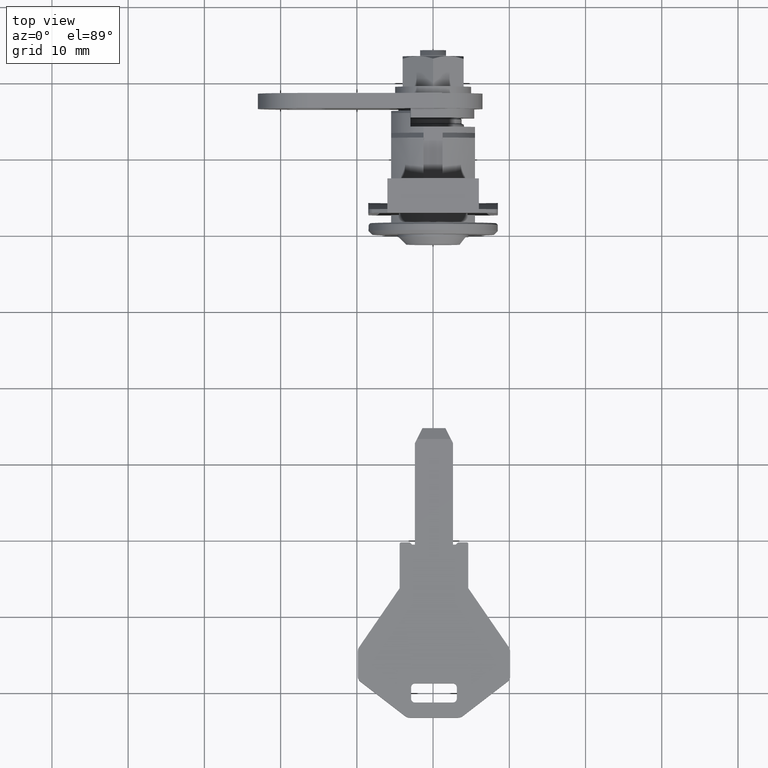
[diagram: clean part render]
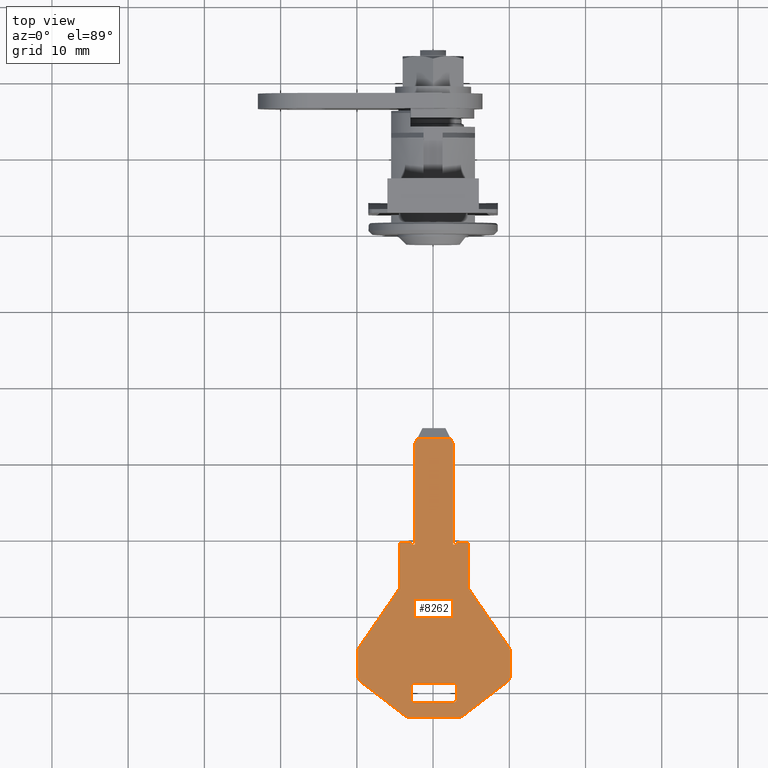
[diagram: same view with one face highlighted and labeled with its STEP entity id]
A machine part, top view. The second image highlights one B-rep face of the part: STEP entity #8262.
In plain terms, the highlighted face is a freeform B-spline surface patch.
Its self-contained STEP definition (entity closure, byte-faithful):
#6846=CARTESIAN_POINT('',(-26.804951253183500,-2.344554118247190,0.900000000000000));
#6847=VERTEX_POINT('',#6846);
#6862=CARTESIAN_POINT('',(-26.804951253596450,2.114778545015325,0.900000000150315));
#6863=VERTEX_POINT('',#6862);
#6869=CARTESIAN_POINT('',(-26.804951253596450,2.114778545015325,0.900000000150315));
#6870=CARTESIAN_POINT('',(-26.804951253183500,-2.344554118247190,0.900000000000000));
#6871=QUASI_UNIFORM_CURVE('',1,(#6869,#6870),.UNSPECIFIED.,.F.,.U.);
#6872=EDGE_CURVE('',#6863,#6847,#6871,.T.);
#6929=CARTESIAN_POINT('',(-58.872900445619287,2.385112213383990,0.900000000143564));
#6930=VERTEX_POINT('',#6929);
#6936=CARTESIAN_POINT('',(-59.372900445619301,2.885112213383990,0.900000000150295));
#6937=VERTEX_POINT('',#6936);
#6938=CARTESIAN_POINT('',(-58.872900445619287,2.385112213383990,0.900000000143564));
#6939=CARTESIAN_POINT('',(-58.872900445619294,2.885112213383990,0.900000000150295));
#6940=CARTESIAN_POINT('',(-59.372900445619301,2.885112213383990,0.900000000150295));
#6948=(BOUNDED_CURVE()B_SPLINE_CURVE(2,(#6938,#6939,#6940),.UNSPECIFIED.,.F.,.U.)CURVE()GEOMETRIC_REPRESENTATION_ITEM()QUASI_UNIFORM_CURVE()RATIONAL_B_SPLINE_CURVE((1.0,0.707106781186548,1.0))REPRESENTATION_ITEM(''));
#6949=EDGE_CURVE('',#6930,#6937,#6948,.T.);
#6981=CARTESIAN_POINT('',(-58.872900445619997,-2.614887786616010,0.900000000150295));
#6982=VERTEX_POINT('',#6981);
#6988=CARTESIAN_POINT('',(-58.872900445619997,-2.614887786616010,0.900000000150295));
#6989=CARTESIAN_POINT('',(-58.872900445619287,2.385112213383990,0.900000000143564));
#6990=QUASI_UNIFORM_CURVE('',1,(#6988,#6989),.UNSPECIFIED.,.F.,.U.);
#6991=EDGE_CURVE('',#6982,#6930,#6990,.T.);
#7018=CARTESIAN_POINT('',(-59.372900445619997,-3.114887786616010,0.900000000150295));
#7019=VERTEX_POINT('',#7018);
#7025=CARTESIAN_POINT('',(-59.372900445619997,-3.114887786616010,0.900000000150295));
#7026=CARTESIAN_POINT('',(-58.872900445619997,-3.114887786616011,0.900000000150295));
#7027=CARTESIAN_POINT('',(-58.872900445619997,-2.614887786616010,0.900000000150295));
#7035=(BOUNDED_CURVE()B_SPLINE_CURVE(2,(#7025,#7026,#7027),.UNSPECIFIED.,.F.,.U.)CURVE()GEOMETRIC_REPRESENTATION_ITEM()QUASI_UNIFORM_CURVE()RATIONAL_B_SPLINE_CURVE((1.0,0.707106781186548,1.0))REPRESENTATION_ITEM(''));
#7036=EDGE_CURVE('',#7019,#6982,#7035,.T.);
#7062=CARTESIAN_POINT('',(-60.872900445619997,-3.114887786616010,0.900000000150295));
#7063=VERTEX_POINT('',#7062);
#7069=CARTESIAN_POINT('',(-60.872900445619997,-3.114887786616010,0.900000000150295));
#7070=CARTESIAN_POINT('',(-59.372900445619997,-3.114887786616010,0.900000000150295));
#7071=QUASI_UNIFORM_CURVE('',1,(#7069,#7070),.UNSPECIFIED.,.F.,.U.);
#7072=EDGE_CURVE('',#7063,#7019,#7071,.T.);
#7099=CARTESIAN_POINT('',(-61.372900445619997,-2.614887786615895,0.900000000150295));
#7100=VERTEX_POINT('',#7099);
#7106=CARTESIAN_POINT('',(-61.372900445619997,-2.614887786615895,0.900000000150295));
#7107=CARTESIAN_POINT('',(-61.372900445620047,-2.821994567802476,0.900000000150295));
#7108=CARTESIAN_POINT('',(-61.226453836213317,-2.968441177209243,0.900000000150295));
#7109=CARTESIAN_POINT('',(-61.080007226806579,-3.114887786616011,0.900000000150295));
#7110=CARTESIAN_POINT('',(-60.872900445619997,-3.114887786616010,0.900000000150295));
#7118=(BOUNDED_CURVE()B_SPLINE_CURVE(2,(#7106,#7107,#7108,#7109,#7110),.UNSPECIFIED.,.F.,.U.)B_SPLINE_CURVE_WITH_KNOTS((3,2,3),(0.0,0.500000000000000,1.0),.UNSPECIFIED.)CURVE()GEOMETRIC_REPRESENTATION_ITEM()RATIONAL_B_SPLINE_CURVE((1.0,0.923879532511265,1.0,0.923879532511265,1.0))REPRESENTATION_ITEM(''));
#7119=EDGE_CURVE('',#7100,#7063,#7118,.T.);
#7145=CARTESIAN_POINT('',(-61.372900445619301,2.385112213383990,0.900000000150295));
#7146=VERTEX_POINT('',#7145);
#7152=CARTESIAN_POINT('',(-61.372900445619301,2.385112213383990,0.900000000150295));
#7153=CARTESIAN_POINT('',(-61.372900445619997,-2.614887786615895,0.900000000150295));
#7154=QUASI_UNIFORM_CURVE('',1,(#7152,#7153),.UNSPECIFIED.,.F.,.U.);
#7155=EDGE_CURVE('',#7146,#7100,#7154,.T.);
#7182=CARTESIAN_POINT('',(-60.872900445619301,2.885112213383990,0.900000000150295));
#7183=VERTEX_POINT('',#7182);
#7189=CARTESIAN_POINT('',(-60.872900445619301,2.885112213383990,0.900000000150295));
#7190=CARTESIAN_POINT('',(-61.372900445619294,2.885112213383990,0.900000000150295));
#7191=CARTESIAN_POINT('',(-61.372900445619301,2.385112213383990,0.900000000150295));
#7199=(BOUNDED_CURVE()B_SPLINE_CURVE(2,(#7189,#7190,#7191),.UNSPECIFIED.,.F.,.U.)CURVE()GEOMETRIC_REPRESENTATION_ITEM()QUASI_UNIFORM_CURVE()RATIONAL_B_SPLINE_CURVE((1.0,0.707106781186548,1.0))REPRESENTATION_ITEM(''));
#7200=EDGE_CURVE('',#7183,#7146,#7199,.T.);
#7225=CARTESIAN_POINT('',(-59.372900445619301,2.885112213383990,0.900000000150295));
#7226=CARTESIAN_POINT('',(-60.872900445619301,2.885112213383990,0.900000000150295));
#7227=QUASI_UNIFORM_CURVE('',1,(#7225,#7226),.UNSPECIFIED.,.F.,.U.);
#7228=EDGE_CURVE('',#6937,#7183,#7227,.T.);
#7272=CARTESIAN_POINT('',(-40.572900445619098,4.385112213384115,0.900000000150336));
#7273=VERTEX_POINT('',#7272);
#7279=CARTESIAN_POINT('',(-40.372900445619052,4.185112213384000,0.900000000150336));
#7280=VERTEX_POINT('',#7279);
#7281=CARTESIAN_POINT('',(-40.372900445619102,4.185112213384000,0.900000000150336));
#7282=CARTESIAN_POINT('',(-40.372900445619067,4.267954925858652,0.900000000150336));
#7283=CARTESIAN_POINT('',(-40.431479089381753,4.326533569621384,0.900000000150336));
#7284=CARTESIAN_POINT('',(-40.490057733144447,4.385112213384115,0.900000000150336));
#7285=CARTESIAN_POINT('',(-40.572900445619098,4.385112213384115,0.900000000150336));
#7293=(BOUNDED_CURVE()B_SPLINE_CURVE(2,(#7281,#7282,#7283,#7284,#7285),.UNSPECIFIED.,.F.,.U.)B_SPLINE_CURVE_WITH_KNOTS((3,2,3),(0.0,0.500000000000000,1.0),.UNSPECIFIED.)CURVE()GEOMETRIC_REPRESENTATION_ITEM()RATIONAL_B_SPLINE_CURVE((1.0,0.923879532511232,1.0,0.923879532511232,1.0))REPRESENTATION_ITEM(''));
#7294=EDGE_CURVE('',#7280,#7273,#7293,.T.);
#7317=CARTESIAN_POINT('',(-40.372900445620097,3.035112213384395,0.900000000150336));
#7318=VERTEX_POINT('',#7317);
#7319=CARTESIAN_POINT('',(-40.372900445620097,3.035112213384395,0.900000000150336));
#7320=CARTESIAN_POINT('',(-40.372900445619052,4.185112213384000,0.900000000150336));
#7321=QUASI_UNIFORM_CURVE('',1,(#7319,#7320),.UNSPECIFIED.,.F.,.U.);
#7322=EDGE_CURVE('',#7318,#7280,#7321,.T.);
#7345=CARTESIAN_POINT('',(-40.672900445620002,2.735112213384015,0.900000000150336));
#7346=VERTEX_POINT('',#7345);
#7347=CARTESIAN_POINT('',(-40.672900445620002,2.735112213384015,0.900000000150336));
#7348=CARTESIAN_POINT('',(-40.372900445620097,3.035112213384395,0.900000000150336));
#7349=QUASI_UNIFORM_CURVE('',1,(#7347,#7348),.UNSPECIFIED.,.F.,.U.);
#7350=EDGE_CURVE('',#7346,#7318,#7349,.T.);
#7373=CARTESIAN_POINT('',(-40.672900445620002,2.385112213383990,0.900000000150336));
#7374=VERTEX_POINT('',#7373);
#7375=CARTESIAN_POINT('',(-40.672900445620002,2.385112213383990,0.900000000150336));
#7376=CARTESIAN_POINT('',(-40.672900445620002,2.735112213384015,0.900000000150336));
#7377=QUASI_UNIFORM_CURVE('',1,(#7375,#7376),.UNSPECIFIED.,.F.,.U.);
#7378=EDGE_CURVE('',#7374,#7346,#7377,.T.);
#7401=CARTESIAN_POINT('',(-27.335510951127748,2.385112213382910,0.900000000150336));
#7402=VERTEX_POINT('',#7401);
#7403=CARTESIAN_POINT('',(-27.335510951127748,2.385112213382910,0.900000000150336));
#7404=CARTESIAN_POINT('',(-40.672900445620002,2.385112213383990,0.900000000150336));
#7405=QUASI_UNIFORM_CURVE('',1,(#7403,#7404),.UNSPECIFIED.,.F.,.U.);
#7406=EDGE_CURVE('',#7402,#7374,#7405,.T.);
#7430=CARTESIAN_POINT('',(-27.335510951130050,-2.614887786616010,0.900000000150336));
#7431=VERTEX_POINT('',#7430);
#7437=CARTESIAN_POINT('',(-40.672900445620002,-2.614887786615895,0.900000000150336));
#7438=VERTEX_POINT('',#7437);
#7439=CARTESIAN_POINT('',(-40.672900445620002,-2.614887786615895,0.900000000150336));
#7440=CARTESIAN_POINT('',(-27.335510951130050,-2.614887786616010,0.900000000150336));
#7441=QUASI_UNIFORM_CURVE('',1,(#7439,#7440),.UNSPECIFIED.,.F.,.U.);
#7442=EDGE_CURVE('',#7438,#7431,#7441,.T.);
#7465=CARTESIAN_POINT('',(-40.672900445620002,-2.964887786616005,0.900000000150336));
#7466=VERTEX_POINT('',#7465);
#7467=CARTESIAN_POINT('',(-40.672900445620002,-2.964887786616005,0.900000000150336));
#7468=CARTESIAN_POINT('',(-40.672900445620002,-2.614887786615895,0.900000000150336));
#7469=QUASI_UNIFORM_CURVE('',1,(#7467,#7468),.UNSPECIFIED.,.F.,.U.);
#7470=EDGE_CURVE('',#7466,#7438,#7469,.T.);
#7493=CARTESIAN_POINT('',(-40.372900445620047,-3.264887786616300,0.900000000150336));
#7494=VERTEX_POINT('',#7493);
#7495=CARTESIAN_POINT('',(-40.372900445620047,-3.264887786616300,0.900000000150336));
#7496=CARTESIAN_POINT('',(-40.672900445620002,-2.964887786616005,0.900000000150336));
#7497=QUASI_UNIFORM_CURVE('',1,(#7495,#7496),.UNSPECIFIED.,.F.,.U.);
#7498=EDGE_CURVE('',#7494,#7466,#7497,.T.);
#7521=CARTESIAN_POINT('',(-40.372900445620203,-4.414887786615990,0.900000000150336));
#7522=VERTEX_POINT('',#7521);
#7523=CARTESIAN_POINT('',(-40.372900445620203,-4.414887786615990,0.900000000150336));
#7524=CARTESIAN_POINT('',(-40.372900445620047,-3.264887786616300,0.900000000150336));
#7525=QUASI_UNIFORM_CURVE('',1,(#7523,#7524),.UNSPECIFIED.,.F.,.U.);
#7526=EDGE_CURVE('',#7522,#7494,#7525,.T.);
#7568=CARTESIAN_POINT('',(-40.572900445620249,-4.614887786616010,0.900000000150336));
#7569=VERTEX_POINT('',#7568);
#7570=CARTESIAN_POINT('',(-40.572900445620249,-4.614887786615989,0.900000000150336));
#7571=CARTESIAN_POINT('',(-40.490057733145619,-4.614887786616010,0.900000000150336));
#7572=CARTESIAN_POINT('',(-40.431479089382911,-4.556309142853317,0.900000000150336));
#7573=CARTESIAN_POINT('',(-40.372900445620196,-4.497730499090623,0.900000000150336));
#7574=CARTESIAN_POINT('',(-40.372900445620203,-4.414887786615990,0.900000000150336));
#7582=(BOUNDED_CURVE()B_SPLINE_CURVE(2,(#7570,#7571,#7572,#7573,#7574),.UNSPECIFIED.,.F.,.U.)B_SPLINE_CURVE_WITH_KNOTS((3,2,3),(0.0,0.500000000000000,1.0),.UNSPECIFIED.)CURVE()GEOMETRIC_REPRESENTATION_ITEM()RATIONAL_B_SPLINE_CURVE((1.0,0.923879532511264,1.0,0.923879532511264,1.0))REPRESENTATION_ITEM(''));
#7583=EDGE_CURVE('',#7569,#7522,#7582,.T.);
#7606=CARTESIAN_POINT('',(-46.372900445620203,-4.614887786616010,0.900000000150336));
#7607=VERTEX_POINT('',#7606);
#7608=CARTESIAN_POINT('',(-46.372900445620203,-4.614887786616010,0.900000000150336));
#7609=CARTESIAN_POINT('',(-40.572900445620249,-4.614887786616010,0.900000000150336));
#7610=QUASI_UNIFORM_CURVE('',1,(#7608,#7609),.UNSPECIFIED.,.F.,.U.);
#7611=EDGE_CURVE('',#7607,#7569,#7610,.T.);
#7634=CARTESIAN_POINT('',(-54.116961426285300,-9.938929710815751,0.900000000150336));
#7635=VERTEX_POINT('',#7634);
#7636=CARTESIAN_POINT('',(-54.116961426285300,-9.938929710815751,0.900000000150336));
#7637=CARTESIAN_POINT('',(-46.372900445620203,-4.614887786616010,0.900000000150336));
#7638=QUASI_UNIFORM_CURVE('',1,(#7636,#7637),.UNSPECIFIED.,.F.,.U.);
#7639=EDGE_CURVE('',#7635,#7607,#7638,.T.);
#7679=CARTESIAN_POINT('',(-54.683490249171797,-10.114887786616000,0.900000000150336));
#7680=VERTEX_POINT('',#7679);
#7681=CARTESIAN_POINT('',(-54.683490249171797,-10.114887786616009,0.900000000150336));
#7682=CARTESIAN_POINT('',(-54.372900445631473,-10.114887786616011,0.900000000150336));
#7683=CARTESIAN_POINT('',(-54.116961426285293,-9.938929710815764,0.900000000150336));
#7691=(BOUNDED_CURVE()B_SPLINE_CURVE(2,(#7681,#7682,#7683),.UNSPECIFIED.,.F.,.U.)CURVE()GEOMETRIC_REPRESENTATION_ITEM()QUASI_UNIFORM_CURVE()RATIONAL_B_SPLINE_CURVE((1.0,0.954997885913825,1.0))REPRESENTATION_ITEM(''));
#7692=EDGE_CURVE('',#7680,#7635,#7691,.T.);
#7715=CARTESIAN_POINT('',(-57.880498948164913,-10.114887786616000,0.900000000150336));
#7716=VERTEX_POINT('',#7715);
#7717=CARTESIAN_POINT('',(-57.880498948164913,-10.114887786616000,0.900000000150336));
#7718=CARTESIAN_POINT('',(-54.683490249171797,-10.114887786616000,0.900000000150336));
#7719=QUASI_UNIFORM_CURVE('',1,(#7717,#7718),.UNSPECIFIED.,.F.,.U.);
#7720=EDGE_CURVE('',#7716,#7680,#7719,.T.);
#7760=CARTESIAN_POINT('',(-58.673122937269099,-9.724598547466091,0.900000000150336));
#7761=VERTEX_POINT('',#7760);
#7762=CARTESIAN_POINT('',(-58.673122937269163,-9.724598547466142,0.900000000150336));
#7763=CARTESIAN_POINT('',(-58.372900445615080,-10.114887786616011,0.900000000150336));
#7764=CARTESIAN_POINT('',(-57.880498948164913,-10.114887786616009,0.900000000150336));
#7772=(BOUNDED_CURVE()B_SPLINE_CURVE(2,(#7762,#7763,#7764),.UNSPECIFIED.,.F.,.U.)CURVE()GEOMETRIC_REPRESENTATION_ITEM()QUASI_UNIFORM_CURVE()RATIONAL_B_SPLINE_CURVE((1.0,0.897137325288089,1.0))REPRESENTATION_ITEM(''));
#7773=EDGE_CURVE('',#7761,#7716,#7772,.T.);
#7796=CARTESIAN_POINT('',(-63.165524434724411,-3.884476600780175,0.900000000150336));
#7797=VERTEX_POINT('',#7796);
#7798=CARTESIAN_POINT('',(-63.165524434724411,-3.884476600780175,0.900000000150336));
#7799=CARTESIAN_POINT('',(-58.673122937269099,-9.724598547466091,0.900000000150336));
#7800=QUASI_UNIFORM_CURVE('',1,(#7798,#7799),.UNSPECIFIED.,.F.,.U.);
#7801=EDGE_CURVE('',#7797,#7761,#7800,.T.);
#7841=CARTESIAN_POINT('',(-63.372900445620097,-3.274765839930010,0.900000000150336));
#7842=VERTEX_POINT('',#7841);
#7843=CARTESIAN_POINT('',(-63.372900445620090,-3.274765839930100,0.900000000150336));
#7844=CARTESIAN_POINT('',(-63.372900445620097,-3.614887786616040,0.900000000150336));
#7845=CARTESIAN_POINT('',(-63.165524434724411,-3.884476600780172,0.900000000150336));
#7853=(BOUNDED_CURVE()B_SPLINE_CURVE(2,(#7843,#7844,#7845),.UNSPECIFIED.,.F.,.U.)CURVE()GEOMETRIC_REPRESENTATION_ITEM()QUASI_UNIFORM_CURVE()RATIONAL_B_SPLINE_CURVE((1.0,0.946737553154069,1.0))REPRESENTATION_ITEM(''));
#7854=EDGE_CURVE('',#7842,#7797,#7853,.T.);
#7877=CARTESIAN_POINT('',(-63.372900445619202,3.044990266698195,0.900000000150336));
#7878=VERTEX_POINT('',#7877);
#7879=CARTESIAN_POINT('',(-63.372900445619202,3.044990266698195,0.900000000150336));
#7880=CARTESIAN_POINT('',(-63.372900445620097,-3.274765839930010,0.900000000150336));
#7881=QUASI_UNIFORM_CURVE('',1,(#7879,#7880),.UNSPECIFIED.,.F.,.U.);
#7882=EDGE_CURVE('',#7878,#7842,#7881,.T.);
#7922=CARTESIAN_POINT('',(-63.165524434723700,3.654701027548100,0.900000000150336));
#7923=VERTEX_POINT('',#7922);
#7924=CARTESIAN_POINT('',(-63.165524434723658,3.654701027548070,0.900000000150336));
#7925=CARTESIAN_POINT('',(-63.372900445619202,3.385112213383996,0.900000000150336));
#7926=CARTESIAN_POINT('',(-63.372900445619202,3.044990266698195,0.900000000150336));
#7934=(BOUNDED_CURVE()B_SPLINE_CURVE(2,(#7924,#7925,#7926),.UNSPECIFIED.,.F.,.U.)CURVE()GEOMETRIC_REPRESENTATION_ITEM()QUASI_UNIFORM_CURVE()RATIONAL_B_SPLINE_CURVE((1.0,0.946737553154109,1.0))REPRESENTATION_ITEM(''));
#7935=EDGE_CURVE('',#7923,#7878,#7934,.T.);
#7958=CARTESIAN_POINT('',(-58.673122937271899,9.494822974233800,0.900000000150336));
#7959=VERTEX_POINT('',#7958);
#7960=CARTESIAN_POINT('',(-58.673122937271899,9.494822974233800,0.900000000150336));
#7961=CARTESIAN_POINT('',(-63.165524434723700,3.654701027548100,0.900000000150336));
#7962=QUASI_UNIFORM_CURVE('',1,(#7960,#7961),.UNSPECIFIED.,.F.,.U.);
#7963=EDGE_CURVE('',#7959,#7923,#7962,.T.);
#8003=CARTESIAN_POINT('',(-57.880498948167400,9.885112213383989,0.900000000150336));
#8004=VERTEX_POINT('',#8003);
#8005=CARTESIAN_POINT('',(-57.880498948167400,9.885112213383989,0.900000000150336));
#8006=CARTESIAN_POINT('',(-58.372900445617816,9.885112213383989,0.900000000150336));
#8007=CARTESIAN_POINT('',(-58.673122937271913,9.494822974233806,0.900000000150336));
#8015=(BOUNDED_CURVE()B_SPLINE_CURVE(2,(#8005,#8006,#8007),.UNSPECIFIED.,.F.,.U.)CURVE()GEOMETRIC_REPRESENTATION_ITEM()QUASI_UNIFORM_CURVE()RATIONAL_B_SPLINE_CURVE((1.0,0.897137325288001,1.0))REPRESENTATION_ITEM(''));
#8016=EDGE_CURVE('',#8004,#7959,#8015,.T.);
#8039=CARTESIAN_POINT('',(-54.683490249160698,9.885112213384110,0.900000000150336));
#8040=VERTEX_POINT('',#8039);
#8041=CARTESIAN_POINT('',(-54.683490249160698,9.885112213384110,0.900000000150336));
#8042=CARTESIAN_POINT('',(-57.880498948167400,9.885112213383989,0.900000000150336));
#8043=QUASI_UNIFORM_CURVE('',1,(#8041,#8042),.UNSPECIFIED.,.F.,.U.);
#8044=EDGE_CURVE('',#8040,#8004,#8043,.T.);
#8084=CARTESIAN_POINT('',(-54.116961426273697,9.709154137583399,0.900000000150336));
#8085=VERTEX_POINT('',#8084);
#8086=CARTESIAN_POINT('',(-54.116961426273647,9.709154137583473,0.900000000150336));
#8087=CARTESIAN_POINT('',(-54.372900445620004,9.885112213384099,0.900000000150336));
#8088=CARTESIAN_POINT('',(-54.683490249160698,9.885112213384099,0.900000000150336));
#8096=(BOUNDED_CURVE()B_SPLINE_CURVE(2,(#8086,#8087,#8088),.UNSPECIFIED.,.F.,.U.)CURVE()GEOMETRIC_REPRESENTATION_ITEM()QUASI_UNIFORM_CURVE()RATIONAL_B_SPLINE_CURVE((1.0,0.954997885913727,1.0))REPRESENTATION_ITEM(''));
#8097=EDGE_CURVE('',#8085,#8040,#8096,.T.);
#8120=CARTESIAN_POINT('',(-46.372900445619003,4.385112213383990,0.900000000150336));
#8121=VERTEX_POINT('',#8120);
#8122=CARTESIAN_POINT('',(-46.372900445619003,4.385112213383990,0.900000000150336));
#8123=CARTESIAN_POINT('',(-54.116961426273697,9.709154137583399,0.900000000150336));
#8124=QUASI_UNIFORM_CURVE('',1,(#8122,#8123),.UNSPECIFIED.,.F.,.U.);
#8125=EDGE_CURVE('',#8121,#8085,#8124,.T.);
#8146=CARTESIAN_POINT('',(-40.572900445619098,4.385112213384115,0.900000000150336));
#8147=CARTESIAN_POINT('',(-46.372900445619003,4.385112213383990,0.900000000150336));
#8148=QUASI_UNIFORM_CURVE('',1,(#8146,#8147),.UNSPECIFIED.,.F.,.U.);
#8149=EDGE_CURVE('',#7273,#8121,#8148,.T.);
#8209=CARTESIAN_POINT('',(-65.199471153275240,10.884111799128849,0.900000000150295));
#8210=CARTESIAN_POINT('',(-24.978381199414240,10.884111799128849,0.900000000150295));
#8211=CARTESIAN_POINT('',(-65.199471153275240,-11.113888266430420,0.900000000150295));
#8212=CARTESIAN_POINT('',(-24.978381199414240,-11.113888266430420,0.900000000150295));
#8213=B_SPLINE_SURFACE_WITH_KNOTS('',1,1,((#8209,#8211),(#8210,#8212)),.UNSPECIFIED.,.F.,.F.,.U.,(2,2),(2,2),(0.0,40.221089953860997),(0.0,21.998000065559271),.UNSPECIFIED.);
#8214=CARTESIAN_POINT('',(-27.335510951130050,-2.614887786616010,0.900000000150336));
#8215=CARTESIAN_POINT('',(-26.804951253183500,-2.344554118247190,0.900000000000000));
#8216=QUASI_UNIFORM_CURVE('',1,(#8214,#8215),.UNSPECIFIED.,.F.,.U.);
#8217=EDGE_CURVE('',#7431,#6847,#8216,.T.);
#8218=ORIENTED_EDGE('',*,*,#8217,.T.);
#8219=ORIENTED_EDGE('',*,*,#6872,.F.);
#8220=CARTESIAN_POINT('',(-26.804951253596450,2.114778545015325,0.900000000150315));
#8221=CARTESIAN_POINT('',(-27.335510951127748,2.385112213382910,0.900000000150336));
#8222=QUASI_UNIFORM_CURVE('',1,(#8220,#8221),.UNSPECIFIED.,.F.,.U.);
#8223=EDGE_CURVE('',#6863,#7402,#8222,.T.);
#8224=ORIENTED_EDGE('',*,*,#8223,.T.);
#8225=ORIENTED_EDGE('',*,*,#7406,.T.);
#8226=ORIENTED_EDGE('',*,*,#7378,.T.);
#8227=ORIENTED_EDGE('',*,*,#7350,.T.);
#8228=ORIENTED_EDGE('',*,*,#7322,.T.);
#8229=ORIENTED_EDGE('',*,*,#7294,.T.);
#8230=ORIENTED_EDGE('',*,*,#8149,.T.);
#8231=ORIENTED_EDGE('',*,*,#8125,.T.);
#8232=ORIENTED_EDGE('',*,*,#8097,.T.);
#8233=ORIENTED_EDGE('',*,*,#8044,.T.);
#8234=ORIENTED_EDGE('',*,*,#8016,.T.);
#8235=ORIENTED_EDGE('',*,*,#7963,.T.);
#8236=ORIENTED_EDGE('',*,*,#7935,.T.);
#8237=ORIENTED_EDGE('',*,*,#7882,.T.);
#8238=ORIENTED_EDGE('',*,*,#7854,.T.);
#8239=ORIENTED_EDGE('',*,*,#7801,.T.);
#8240=ORIENTED_EDGE('',*,*,#7773,.T.);
#8241=ORIENTED_EDGE('',*,*,#7720,.T.);
#8242=ORIENTED_EDGE('',*,*,#7692,.T.);
#8243=ORIENTED_EDGE('',*,*,#7639,.T.);
#8244=ORIENTED_EDGE('',*,*,#7611,.T.);
#8245=ORIENTED_EDGE('',*,*,#7583,.T.);
#8246=ORIENTED_EDGE('',*,*,#7526,.T.);
#8247=ORIENTED_EDGE('',*,*,#7498,.T.);
#8248=ORIENTED_EDGE('',*,*,#7470,.T.);
#8249=ORIENTED_EDGE('',*,*,#7442,.T.);
#8250=EDGE_LOOP('',(#8218,#8219,#8224,#8225,#8226,#8227,#8228,#8229,#8230,#8231,#8232,#8233,#8234,#8235,#8236,#8237,#8238,#8239,#8240,#8241,#8242,#8243,#8244,#8245,#8246,#8247,#8248,#8249));
#8251=FACE_OUTER_BOUND('',#8250,.T.);
#8252=ORIENTED_EDGE('',*,*,#7228,.F.);
#8253=ORIENTED_EDGE('',*,*,#6949,.F.);
#8254=ORIENTED_EDGE('',*,*,#6991,.F.);
#8255=ORIENTED_EDGE('',*,*,#7036,.F.);
#8256=ORIENTED_EDGE('',*,*,#7072,.F.);
#8257=ORIENTED_EDGE('',*,*,#7119,.F.);
#8258=ORIENTED_EDGE('',*,*,#7155,.F.);
#8259=ORIENTED_EDGE('',*,*,#7200,.F.);
#8260=EDGE_LOOP('',(#8252,#8253,#8254,#8255,#8256,#8257,#8258,#8259));
#8261=FACE_BOUND('',#8260,.T.);
#8262=ADVANCED_FACE('',(#8251,#8261),#8213,.F.);